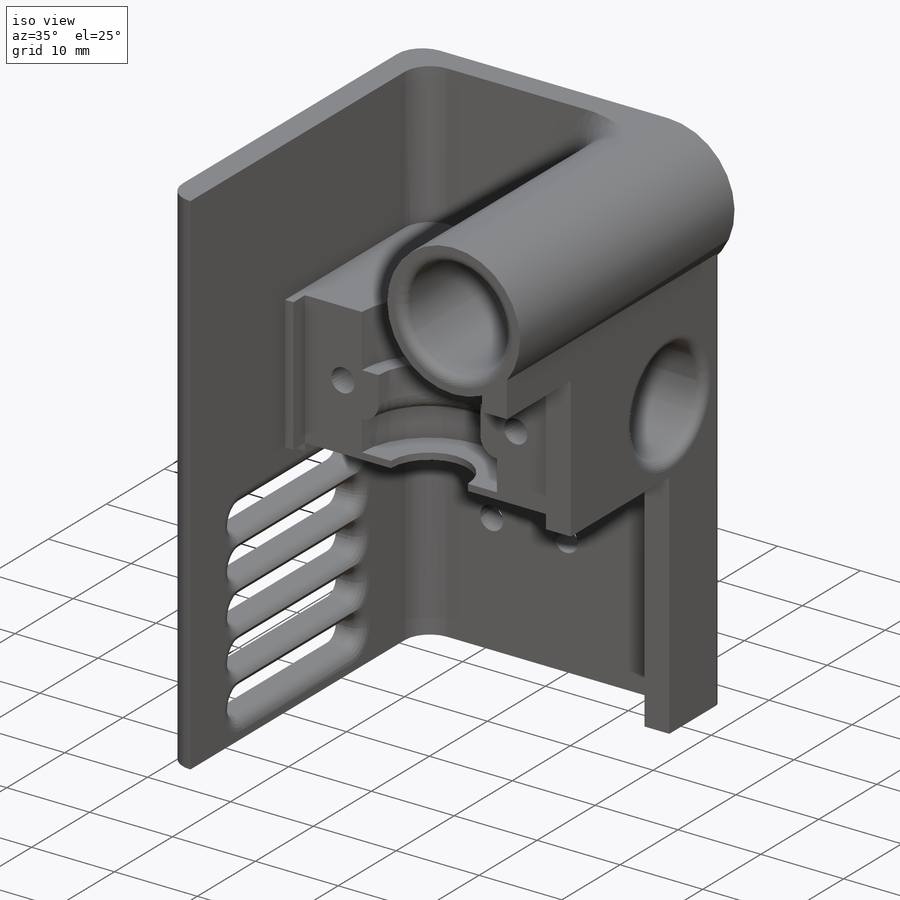
[diagram: iso view]
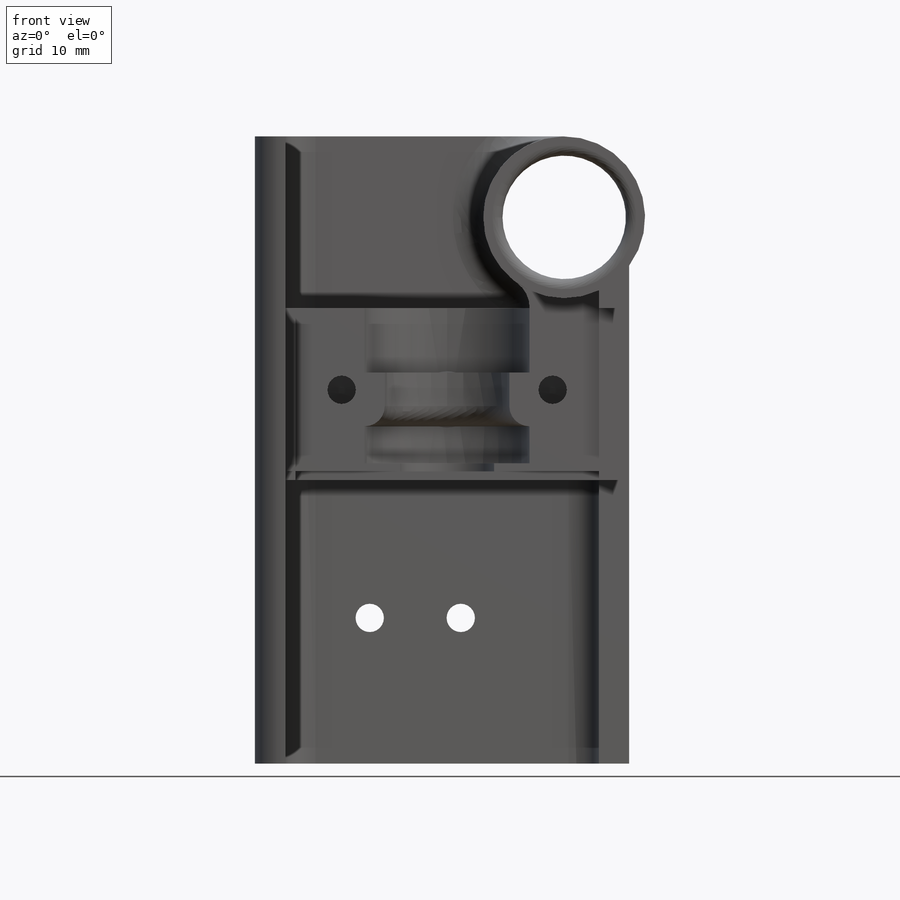
[diagram: front view]
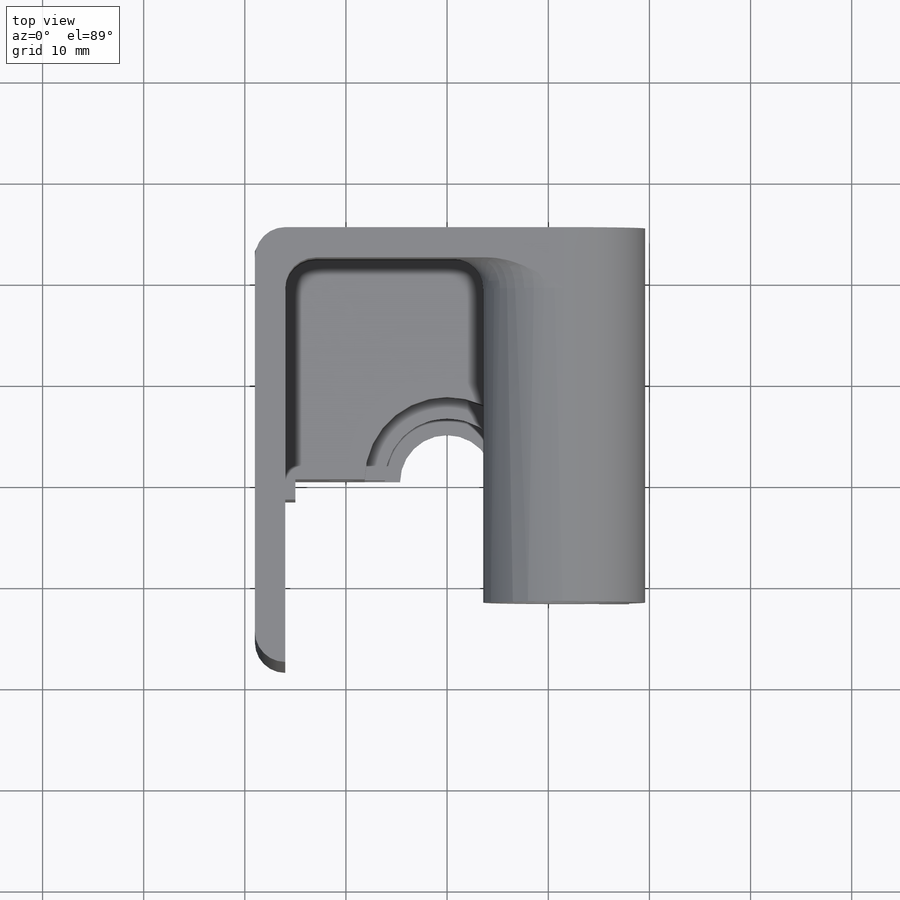
[diagram: top view]
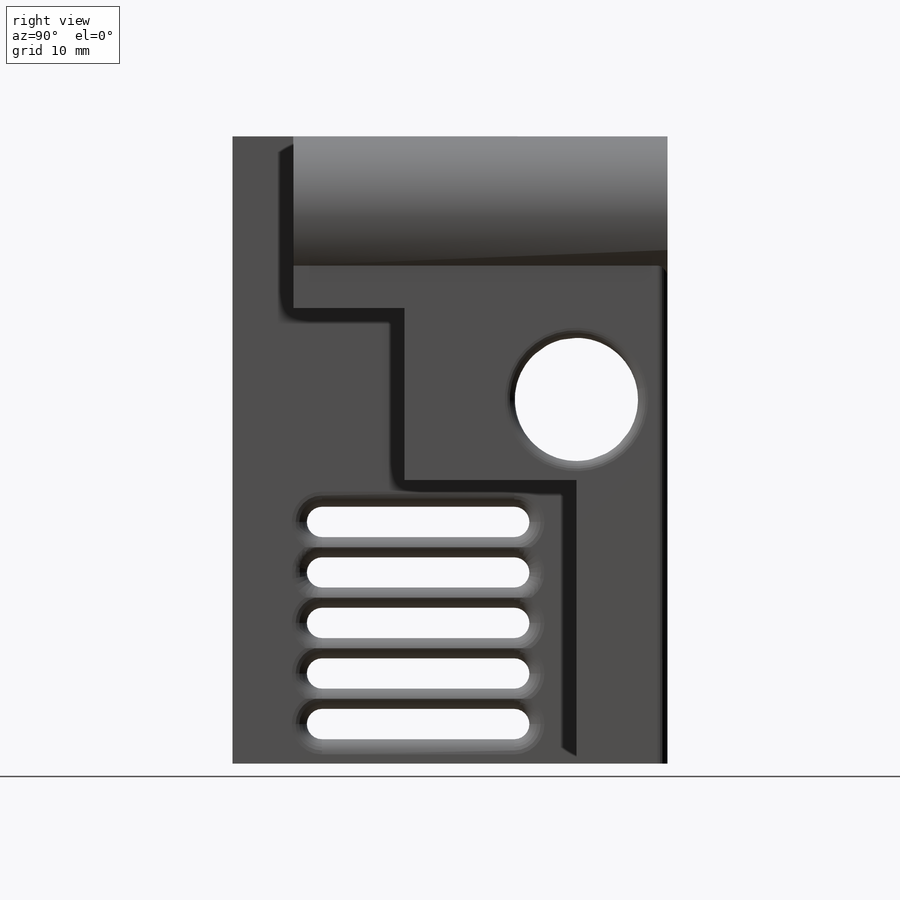
[diagram: right view]
SOLIDWORKS PART (.sldprt)
format: sldprt  version: not decoded by parser v0  size: 1,292,288 bytes
history: native  units: mm
features: sketch x49, extrude x28, fillet x21, cut_extrude x11, material x1 + 1 further entry (+10 scaffold rows collapsed)
feature tree (121):
  scaffold x10  (default folders/planes/origin — collapsed)
  material  "Material <not specified>"
  "Annotations"  RD1=9mm
  sketch  "Sketch1"  dims[D1=6.85mm]
  extrude  "Boss-Extrude1"  Depth=6.34mm
  sketch  "Sketch2"
  extrude  "Boss-Extrude2"  Depth=5.32mm
  sketch  "Sketch3"  dims[D1=~4.945851mm]
  cut_extrude  "Cut-Extrude1"  Depth=5.32mm
  sketch  "Sketch4"  dims[D1=~9.086374mm]
  extrude  "Boss-Extrude3"  Depth=3.65mm
  sketch  "Sketch5"
  extrude  "Boss-Extrude4"  Depth=0.8mm
  sketch  "Sketch6"  dims[D1=~4.013369mm]
  cut_extrude  "Cut-Extrude2"  Depth=0.8mm
  fillet  "Fillet2"  Radius=2mm
  sketch  "Sketch7"  dims[c1.D3=2.2663mm c1.D4=~1.757503mm c1.D1=1.72mm c1.D2=2.28mm c2.D3=2.28mm]
  cut_extrude  "Cut-Extrude3"  Depth=8mm
  sketch  "Sketch8"  dims[D1=6.0mm]
  sketch  "Sketch9"  dims[D1=14.0mm]
  extrude  "Boss-Extrude5"  Depth=17mm
  sketch  "Sketch10"  dims[D1=~6.222489mm]
  cut_extrude  "Cut-Extrude4"  Depth=30mm
  sketch  "Sketch11"  dims[D1=~7.898437mm]
  extrude  "Boss-Extrude6"  Depth=3mm
  sketch  "Sketch12"  dims[D1=~9.041649mm]
  extrude  "Boss-Extrude7"  Depth=3mm
  fillet  "Fillet3"  Radius=1mm
  fillet  "Fillet4"  Radius=1mm
  sketch  "Sketch13"  dims[D1=18.0mm]
  sketch  "Sketch14"  dims[D1=6.85mm]
  extrude  "Boss-Extrude8"  Depth=9mm
  sketch  "Sketch15"  dims[D1=~5.259972mm]
  sketch  "Sketch16"  dims[D1=~9.547573mm]
  extrude  "Boss-Extrude9"  Depth=36mm
  sketch  "Sketch17"  dims[D1=~4.78502mm]
  cut_extrude  "Cut-Extrude5"  Depth=36mm
  sketch  "Sketch19"  dims[D1=2.0mm D2=3.0mm D3=3.0mm]
  sketch  "Sketch20"
  extrude  "Boss-Extrude10"  Depth=28mm
  sketch  "Sketch21"  dims[D1=3.0mm]
  extrude  "Boss-Extrude11"  Depth=2mm
  sketch  "Sketch22"  dims[D1=2.0mm]
  extrude  "Boss-Extrude12"  Depth=34mm
  sketch  "Sketch23"  dims[D1=2.0mm]
  extrude  "Boss-Extrude13"  Depth=3mm
  sketch  "Sketch24"  dims[D1=2.0mm]
  extrude  "Boss-Extrude14"  Depth=34mm
  sketch  "Sketch25"
  sketch  "Sketch26"
  extrude  "Boss-Extrude15"  Depth=12mm
  sketch  "Sketch27"
  cut_extrude  "Cut-Extrude6"  Depth=1mm
  sketch  "Sketch28"  dims[D1=3.5mm D2=11.0mm D3=11.0mm]
  cut_extrude  "Cut-Extrude7"  Depth=2mm
  sketch  "Sketch29"
  extrude  "Boss-Extrude16"  Depth=3mm
  sketch  "Sketch32"
  extrude  "Boss-Extrude19"  Depth=36mm
  sketch  "Sketch33"
  extrude  "Boss-Extrude21"  Depth=18.77mm
  sketch  "Sketch36"  dims[D1=2.0mm]
  extrude  "Boss-Extrude22"  Depth=22.77mm
  fillet  "Fillet7"  Radius=5mm
  fillet  "Fillet8"  Radius=5mm
  fillet  "Fillet9"  Radius=5mm
  fillet  "Fillet10"  Radius=5mm
  sketch  "Sketch37"  dims[D1=23.39mm D2=3.0mm D3=2.0mm D4=3.0mm D5=2.0mm D6=3.0mm D7=2.0mm]
  extrude  "Boss-Extrude23"  Depth=2mm
  sketch  "Sketch40"  dims[D1=~8.225335mm]
  sketch  "Sketch41"  dims[D1=1.0mm]
  extrude  "Boss-Extrude26"  Depth=36mm
  sketch  "Sketch42"  dims[D1=8.0mm]
  cut_extrude  "Cut-Extrude10"  Depth=1mm
  sketch  "Sketch43"  dims[D1=3.0mm D2=3.0mm]
  cut_extrude  "Cut-Extrude11"  Depth=5mm
  sketch  "Sketch44"
  extrude  "Boss-Extrude27"  Depth=3mm
  sketch  "Sketch45"
  cut_extrude  "Cut-Extrude12"  Depth=11mm
  sketch  "Sketch47"  dims[D1=3.0mm]
  extrude  "Boss-Extrude28"  Depth=6mm
  sketch  "Sketch49"
  extrude  "Boss-Extrude29"  Depth=6mm
  sketch  "Sketch50"
  fillet  "Fillet21"  Radius=3mm
  fillet  "Fillet23"  Radius=1.5mm
  fillet  "Fillet24"  Radius=1.5mm
  fillet  "Fillet25"  Radius=1.5mm
  fillet  "Fillet26"  Radius=3mm
  fillet  "Fillet27"  Radius=3mm
  sketch  "Sketch51"  dims[D1=~9.426029mm]
  extrude  "Boss-Extrude30"  Depth=1mm
  fillet  "Fillet29"  Radius=3mm
  fillet  "Fillet30"  Radius=3mm
  fillet  "Fillet31"  Radius=3mm
  sketch  "Sketch53"  dims[D1=1.0mm]
  sketch  "Sketch54"  dims[D1=28.89mm]
  sketch  "Sketch55"  dims[D1=~1.029724mm]
  extrude  "Boss-Extrude31"  Depth=8mm
  sketch  "Sketch56"  dims[D1=~3.736855mm]
  extrude  "Boss-Extrude32"  Depth=37mm
  fillet  "Fillet32"  Radius=1mm
  fillet  "Fillet33"  Radius=1mm
  sketch  "Sketch57"  dims[D1=~9.030589mm]
  extrude  "Boss-Extrude33"  Depth=37mm
  fillet  "Fillet34"  Radius=1mm
  fillet  "Fillet35"  Radius=3mm
  fillet  "Fillet36"  Radius=1mm
  sketch  "Sketch60"  dims[D1=21.65mm]
  sketch  "Sketch61"  dims[D4=~1.812481mm D1=14.4mm D2=11.35mm D3=9.0mm]
  cut_extrude  "Cut-Extrude14"  Depth=14mm
decode coverage: 96 of 109 modeling features carry decoded parameters; 1 rows unclassified (native names shown)
note: ~ marks probable driven/reference dimensions
note: suppression state not decoded; provenance and decode notes live in map.json
